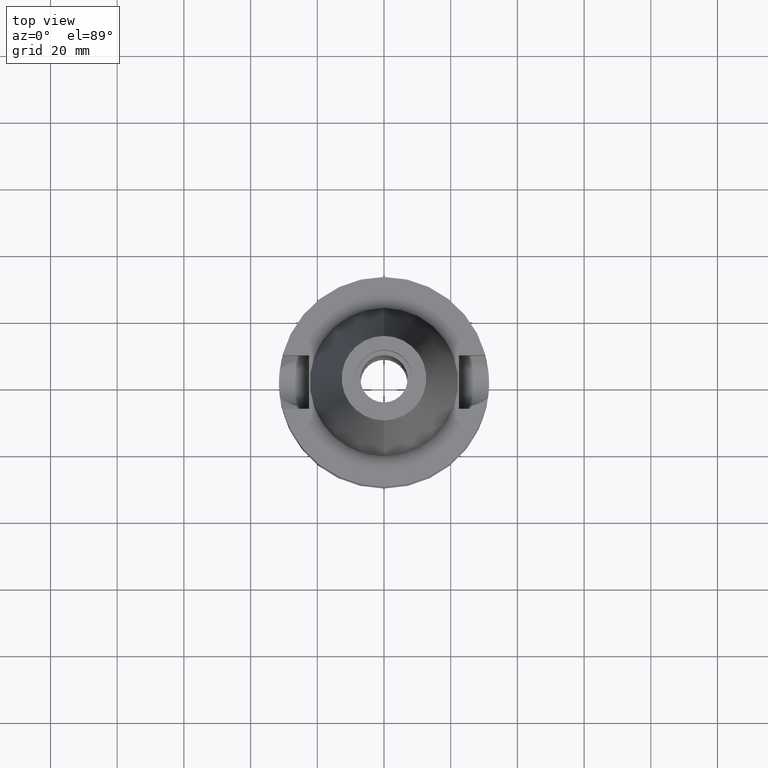
[diagram: clean part render]
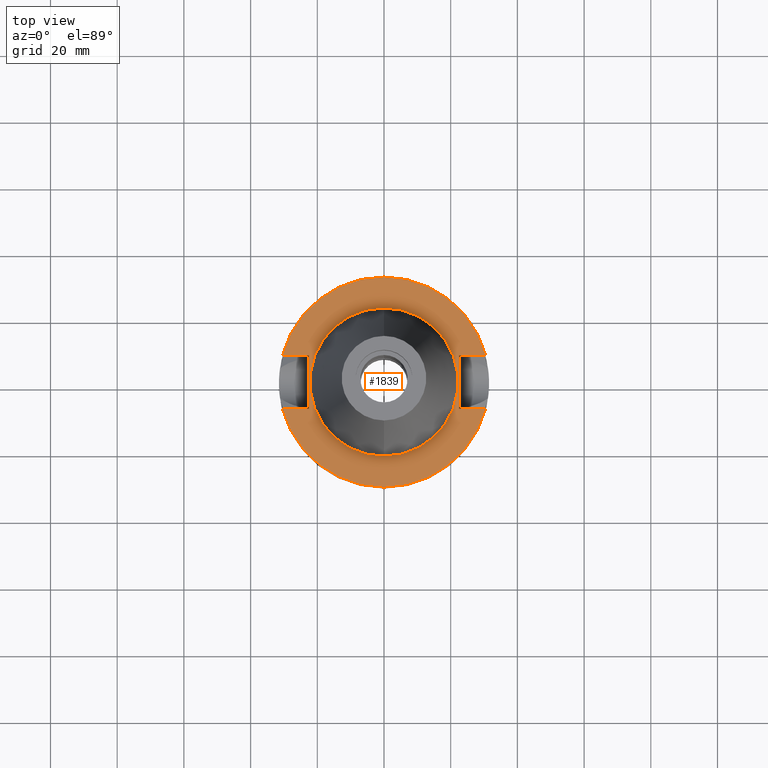
[diagram: same view with one face highlighted and labeled with its STEP entity id]
A machine part, top view. The second image highlights one B-rep face of the part: STEP entity #1839.
In plain terms, the highlighted planar face has unit normal (0, 0, -1).
Its self-contained STEP definition (entity closure, byte-faithful):
#16 = AXIS2_PLACEMENT_3D ( 'NONE', #185, #664, #851 ) ;
#33 = EDGE_LOOP ( 'NONE', ( #472, #1566, #359, #993, #97, #1430, #1766, #1909 ) ) ;
#96 = CARTESIAN_POINT ( 'NONE',  ( 0.0000000000000000000, 0.0000000000000000000, -1.000000000000000000 ) ) ;
#97 = ORIENTED_EDGE ( 'NONE', *, *, #1267, .T. ) ;
#127 = DIRECTION ( 'NONE',  ( 0.0000000000000000000, -1.000000000000000000, 0.0000000000000000000 ) ) ;
#158 = ORIENTED_EDGE ( 'NONE', *, *, #2792, .F. ) ;
#168 = CARTESIAN_POINT ( 'NONE',  ( -22.50000000000000000, -8.050000000000000711, -1.000000000000000000 ) ) ;
#185 = CARTESIAN_POINT ( 'NONE',  ( 0.0000000000000000000, 0.0000000000000000000, -1.000000000000000000 ) ) ;
#205 = DIRECTION ( 'NONE',  ( 0.0000000000000000000, 1.000000000000000000, 0.0000000000000000000 ) ) ;
#274 = DIRECTION ( 'NONE',  ( 0.0000000000000000000, 0.0000000000000000000, -1.000000000000000000 ) ) ;
#283 = VERTEX_POINT ( 'NONE', #1915 ) ;
#289 = CARTESIAN_POINT ( 'NONE',  ( 0.0000000000000000000, 0.0000000000000000000, -1.000000000000000000 ) ) ;
#359 = ORIENTED_EDGE ( 'NONE', *, *, #810, .F. ) ;
#396 = CARTESIAN_POINT ( 'NONE',  ( 0.0000000000000000000, 22.22500000000000142, -1.000000000000000000 ) ) ;
#404 = VERTEX_POINT ( 'NONE', #1049 ) ;
#411 = VECTOR ( 'NONE', #3070, 1000.000000000000000 ) ;
#472 = ORIENTED_EDGE ( 'NONE', *, *, #2744, .F. ) ;
#474 = CARTESIAN_POINT ( 'NONE',  ( -22.50000000000000000, -8.050000000000000711, -1.000000000000000000 ) ) ;
#485 = DIRECTION ( 'NONE',  ( 0.0000000000000000000, 0.0000000000000000000, -1.000000000000000000 ) ) ;
#522 = CARTESIAN_POINT ( 'NONE',  ( 22.50000000000000000, -8.050000000000000711, -1.000000000000000000 ) ) ;
#599 = CARTESIAN_POINT ( 'NONE',  ( 22.50000000000000000, -8.050000000000000711, -1.000000000000000000 ) ) ;
#621 = FACE_BOUND ( 'NONE', #2834, .T. ) ;
#664 = DIRECTION ( 'NONE',  ( 0.0000000000000000000, 0.0000000000000000000, -1.000000000000000000 ) ) ;
#685 = CARTESIAN_POINT ( 'NONE',  ( 30.45402272279000044, 8.050000000000000711, -1.000000000000000000 ) ) ;
#694 = DIRECTION ( 'NONE',  ( 1.000000000000000000, 3.595582526110999949E-14, 0.0000000000000000000 ) ) ;
#793 = CARTESIAN_POINT ( 'NONE',  ( -30.45402272279000044, 8.050000000000000711, -1.000000000000000000 ) ) ;
#805 = CIRCLE ( 'NONE', #1889, 31.50000000000000000 ) ;
#810 = EDGE_CURVE ( 'NONE', #2849, #2345, #2415, .T. ) ;
#851 = DIRECTION ( 'NONE',  ( 0.0000000000000000000, -1.000000000000000000, 0.0000000000000000000 ) ) ;
#885 = PLANE ( 'NONE',  #16 ) ;
#976 = VERTEX_POINT ( 'NONE', #685 ) ;
#993 = ORIENTED_EDGE ( 'NONE', *, *, #2739, .F. ) ;
#1049 = CARTESIAN_POINT ( 'NONE',  ( -30.45402272279000044, -8.050000000000000711, -1.000000000000000000 ) ) ;
#1128 = EDGE_CURVE ( 'NONE', #1874, #2067, #2400, .T. ) ;
#1148 = VECTOR ( 'NONE', #694, 1000.000000000000000 ) ;
#1153 = LINE ( 'NONE', #168, #411 ) ;
#1179 = DIRECTION ( 'NONE',  ( 0.0000000000000000000, -1.000000000000000000, 0.0000000000000000000 ) ) ;
#1237 = ORIENTED_EDGE ( 'NONE', *, *, #1128, .F. ) ;
#1267 = EDGE_CURVE ( 'NONE', #1956, #976, #2926, .T. ) ;
#1295 = CARTESIAN_POINT ( 'NONE',  ( -22.50000000000000000, 8.050000000000000711, -1.000000000000000000 ) ) ;
#1309 = AXIS2_PLACEMENT_3D ( 'NONE', #289, #274, #1942 ) ;
#1393 = CARTESIAN_POINT ( 'NONE',  ( 0.0000000000000000000, 0.0000000000000000000, -1.000000000000000000 ) ) ;
#1430 = ORIENTED_EDGE ( 'NONE', *, *, #3109, .F. ) ;
#1489 = CARTESIAN_POINT ( 'NONE',  ( 22.50000000000000000, 8.050000000000000711, -1.000000000000000000 ) ) ;
#1495 = CIRCLE ( 'NONE', #2144, 22.22500000000000142 ) ;
#1566 = ORIENTED_EDGE ( 'NONE', *, *, #2673, .F. ) ;
#1584 = VECTOR ( 'NONE', #1780, 1000.000000000000000 ) ;
#1644 = DIRECTION ( 'NONE',  ( 0.0000000000000000000, 0.0000000000000000000, 1.000000000000000000 ) ) ;
#1647 = VECTOR ( 'NONE', #2436, 1000.000000000000000 ) ;
#1669 = VERTEX_POINT ( 'NONE', #1295 ) ;
#1712 = DIRECTION ( 'NONE',  ( 1.000000000000000000, -3.506251283225999947E-14, 0.0000000000000000000 ) ) ;
#1766 = ORIENTED_EDGE ( 'NONE', *, *, #2134, .T. ) ;
#1780 = DIRECTION ( 'NONE',  ( 1.000000000000000000, -3.550916904668000126E-14, 0.0000000000000000000 ) ) ;
#1839 = ADVANCED_FACE ( 'NONE', ( #2572, #621 ), #885, .F. ) ;
#1871 = CARTESIAN_POINT ( 'NONE',  ( 22.50000000000000000, 8.050000000000000711, -1.000000000000000000 ) ) ;
#1874 = VERTEX_POINT ( 'NONE', #396 ) ;
#1889 = AXIS2_PLACEMENT_3D ( 'NONE', #1393, #485, #2628 ) ;
#1896 = LINE ( 'NONE', #2613, #2603 ) ;
#1909 = ORIENTED_EDGE ( 'NONE', *, *, #2620, .F. ) ;
#1915 = CARTESIAN_POINT ( 'NONE',  ( -30.45402272279000044, 8.050000000000000711, -1.000000000000000000 ) ) ;
#1933 = CARTESIAN_POINT ( 'NONE',  ( 0.0000000000000000000, -22.22500000000000142, -1.000000000000000000 ) ) ;
#1942 = DIRECTION ( 'NONE',  ( 0.0000000000000000000, 1.000000000000000000, 0.0000000000000000000 ) ) ;
#1956 = VERTEX_POINT ( 'NONE', #1871 ) ;
#1980 = CARTESIAN_POINT ( 'NONE',  ( -30.45402272279000044, -8.050000000000000711, -1.000000000000000000 ) ) ;
#2067 = VERTEX_POINT ( 'NONE', #1933 ) ;
#2129 = LINE ( 'NONE', #1980, #1584 ) ;
#2134 = EDGE_CURVE ( 'NONE', #283, #1669, #2948, .T. ) ;
#2144 = AXIS2_PLACEMENT_3D ( 'NONE', #96, #2725, #127 ) ;
#2345 = VERTEX_POINT ( 'NONE', #2407 ) ;
#2355 = CARTESIAN_POINT ( 'NONE',  ( 0.0000000000000000000, 0.0000000000000000000, -1.000000000000000000 ) ) ;
#2400 = CIRCLE ( 'NONE', #2922, 22.22500000000000142 ) ;
#2407 = CARTESIAN_POINT ( 'NONE',  ( 30.45402272279000044, -8.050000000000000711, -1.000000000000000000 ) ) ;
#2415 = LINE ( 'NONE', #522, #1148 ) ;
#2436 = DIRECTION ( 'NONE',  ( 1.000000000000000000, 3.550916904668000126E-14, 0.0000000000000000000 ) ) ;
#2555 = VECTOR ( 'NONE', #1712, 1000.000000000000000 ) ;
#2572 = FACE_OUTER_BOUND ( 'NONE', #33, .T. ) ;
#2603 = VECTOR ( 'NONE', #1179, 1000.000000000000000 ) ;
#2613 = CARTESIAN_POINT ( 'NONE',  ( 22.50000000000000000, 8.050000000000000711, -1.000000000000000000 ) ) ;
#2620 = EDGE_CURVE ( 'NONE', #2737, #1669, #1153, .T. ) ;
#2628 = DIRECTION ( 'NONE',  ( 0.0000000000000000000, -1.000000000000000000, 0.0000000000000000000 ) ) ;
#2673 = EDGE_CURVE ( 'NONE', #2345, #404, #805, .T. ) ;
#2725 = DIRECTION ( 'NONE',  ( 0.0000000000000000000, 0.0000000000000000000, 1.000000000000000000 ) ) ;
#2737 = VERTEX_POINT ( 'NONE', #474 ) ;
#2739 = EDGE_CURVE ( 'NONE', #1956, #2849, #1896, .T. ) ;
#2744 = EDGE_CURVE ( 'NONE', #404, #2737, #2129, .T. ) ;
#2792 = EDGE_CURVE ( 'NONE', #2067, #1874, #1495, .T. ) ;
#2834 = EDGE_LOOP ( 'NONE', ( #1237, #158 ) ) ;
#2849 = VERTEX_POINT ( 'NONE', #599 ) ;
#2922 = AXIS2_PLACEMENT_3D ( 'NONE', #2355, #1644, #205 ) ;
#2926 = LINE ( 'NONE', #1489, #2555 ) ;
#2948 = LINE ( 'NONE', #793, #1647 ) ;
#2974 = CIRCLE ( 'NONE', #1309, 31.50000000000000000 ) ;
#3070 = DIRECTION ( 'NONE',  ( 0.0000000000000000000, 1.000000000000000000, 0.0000000000000000000 ) ) ;
#3109 = EDGE_CURVE ( 'NONE', #283, #976, #2974, .T. ) ;